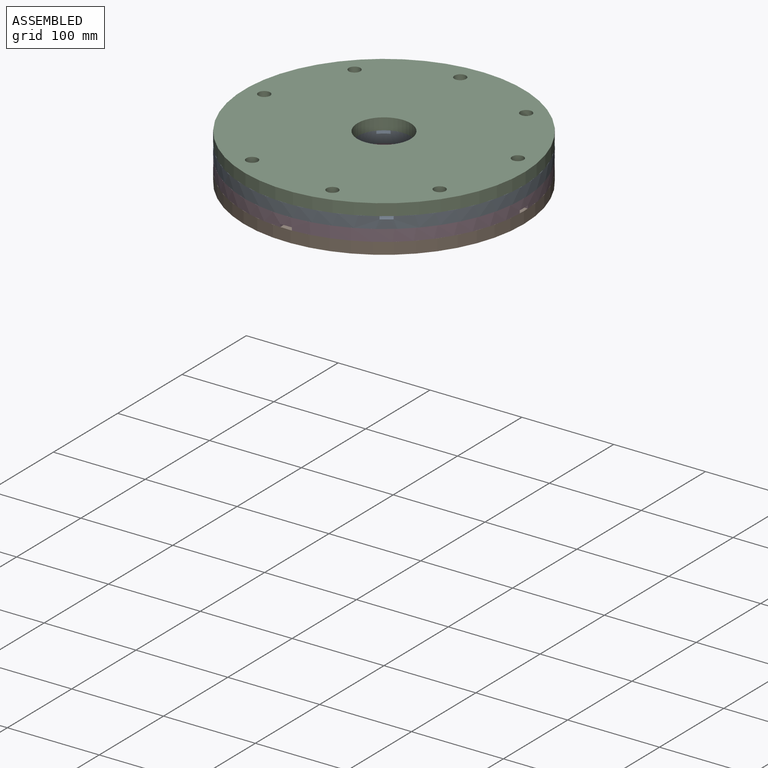
[diagram: assembled view]
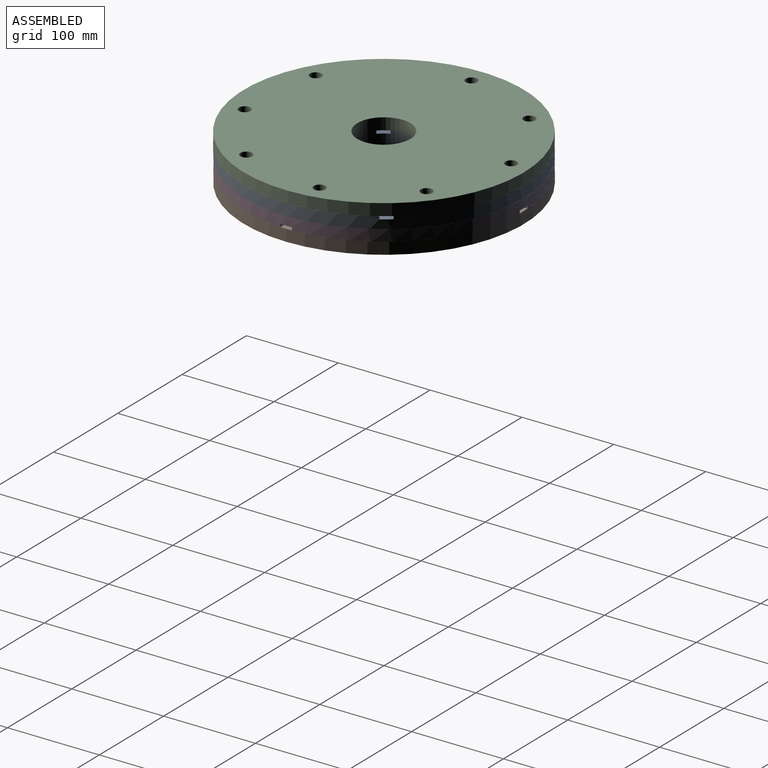
[diagram: assembled view, second angle]
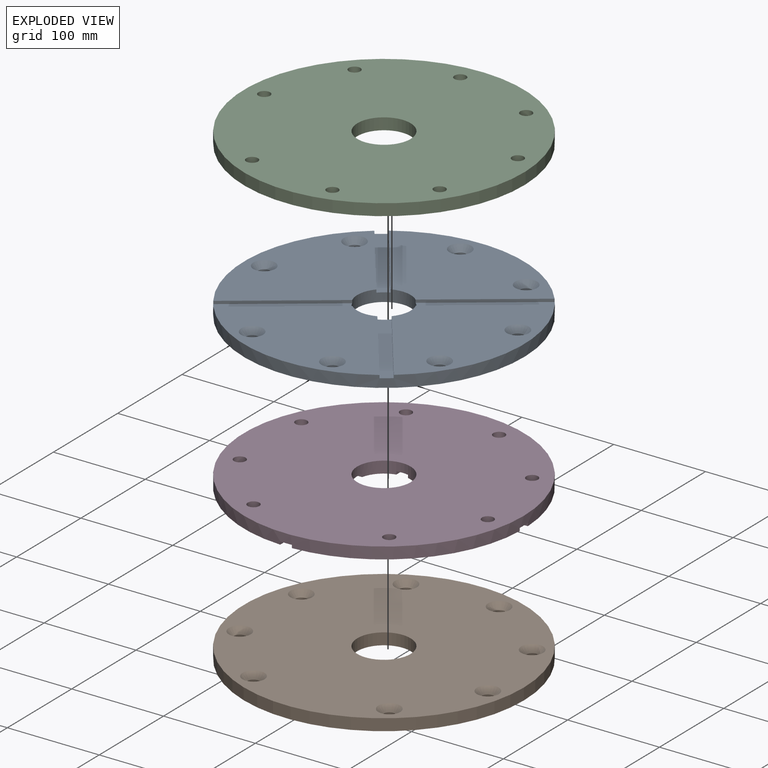
[diagram: exploded view]
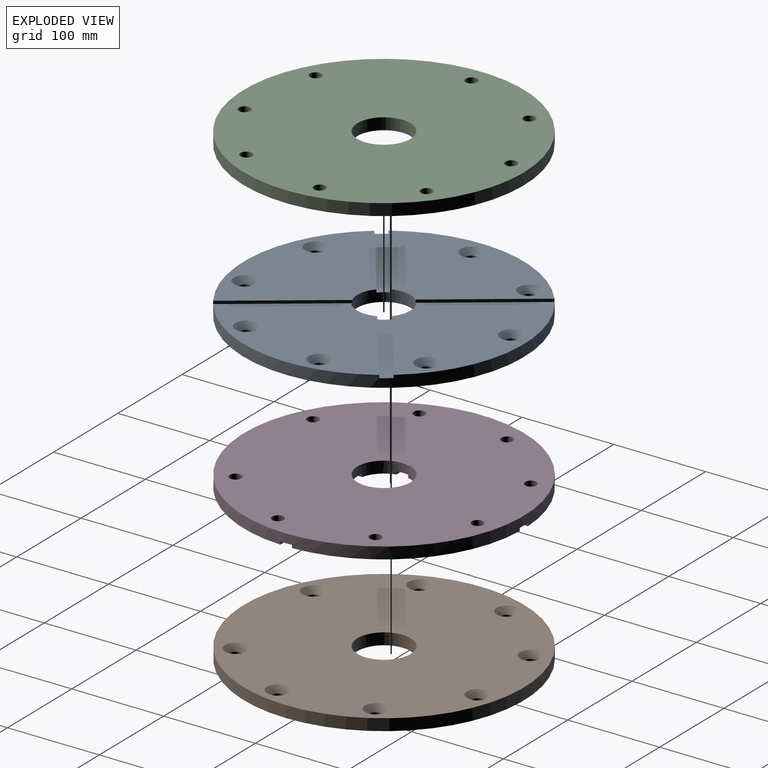
[diagram: exploded view, second angle]
ASSEMBLY  parts=4 mates=3
PART A: 35 faces, bbox 304.8x304.8x12.7 mm
  f0: plane 124.1x12.7mm, normal (0,0,1), area 1569.6mm2, adj f3,f13,f14,f18
  f1: plane 124.1x12.7mm, normal (0,0,1), area 1569.6mm2, adj f3,f15,f16,f18
  f2: plane 124.1x12.7mm, normal (0,0,1), area 1569.6mm2, adj f3,f9,f10,f18
  f3: cylinder r=152.4mm len=304.8mm, axis (0,0,1), area 11999.6mm2, adj f0,f1,f2,f4,f5,f6,f7,f8
  f4: plane 145.92x145.92mm, normal (0,0,1), area 15119.7mm2, adj f3,f12,f13,f18,f30,f32
  f5: plane 145.92x145.92mm, normal (0,0,1), area 15119.7mm2, adj f3,f14,f15,f18,f26,f28
  f6: plane 145.92x145.92mm, normal (0,0,1), area 15119.7mm2, adj f3,f9,f16,f18,f24,f34
  f7: plane 304.8x304.8mm, normal (0,0,-1), area 69310.4mm2, adj f3,f18,f19,f21,f23,f25,f27,f29
  f8: plane 145.92x145.92mm, normal (0,0,1), area 15119.7mm2, adj f3,f10,f11,f18,f20,f22
  f9: plane 123.97x3.18mm, normal (1,0,0), area 393.6mm2, adj f2,f3,f6,f18
  f10: plane 123.97x3.18mm, normal (-1,0,0), area 393.6mm2, adj f2,f3,f8,f18
  f11: plane 123.97x3.18mm, normal (0,1,0), area 393.6mm2, adj f3,f8,f17,f18
  f12: plane 123.97x3.18mm, normal (0,-1,0), area 393.6mm2, adj f3,f4,f17,f18
  f13: plane 123.97x3.18mm, normal (-1,0,0), area 393.6mm2, adj f0,f3,f4,f18
  f14: plane 123.97x3.18mm, normal (1,0,0), area 393.6mm2, adj f0,f3,f5,f18
  f15: plane 123.97x3.18mm, normal (0,-1,0), area 393.6mm2, adj f1,f3,f5,f18
  f16: plane 123.97x3.18mm, normal (0,1,0), area 393.6mm2, adj f1,f3,f6,f18
  f17: plane 124.1x12.7mm, normal (0,0,1), area 1569.6mm2, adj f3,f11,f12,f18
  f18: cylinder r=29mm len=58mm, axis (0,0,-1), area 2151.5mm2, adj f0,f1,f2,f4,f5,f6,f7,f8
  f19: cylinder r=6.35mm len=12.7mm, axis (0,0,1), area 251.4mm2, adj f7,f20
  f20: cone r=6.35mm half-angle=41deg, axis (0,0,1), area 486.5mm2, adj f8,f19
  f21: cylinder r=6.35mm len=12.7mm, axis (0,0,1), area 251.4mm2, adj f7,f22
  f22: cone r=6.35mm half-angle=41deg, axis (0,0,1), area 486.5mm2, adj f8,f21
  f23: cylinder r=6.35mm len=12.7mm, axis (0,0,1), area 251.4mm2, adj f7,f24
  f24: cone r=6.35mm half-angle=41deg, axis (0,0,1), area 486.5mm2, adj f6,f23
  f25: cylinder r=6.35mm len=12.7mm, axis (0,0,1), area 251.4mm2, adj f7,f26
  f26: cone r=6.35mm half-angle=41deg, axis (0,0,1), area 486.5mm2, adj f5,f25
  f27: cylinder r=6.35mm len=12.7mm, axis (0,0,1), area 251.4mm2, adj f7,f28
  f28: cone r=6.35mm half-angle=41deg, axis (0,0,1), area 486.5mm2, adj f5,f27
  f29: cylinder r=6.35mm len=12.7mm, axis (0,0,1), area 251.4mm2, adj f7,f30
  f30: cone r=6.35mm half-angle=41deg, axis (0,0,1), area 486.5mm2, adj f4,f29
  f31: cylinder r=6.35mm len=12.7mm, axis (0,0,1), area 251.4mm2, adj f7,f32
  f32: cone r=6.35mm half-angle=41deg, axis (0,0,1), area 486.5mm2, adj f4,f31
  f33: cylinder r=6.35mm len=12.7mm, axis (0,0,1), area 251.4mm2, adj f7,f34
  f34: cone r=6.35mm half-angle=41deg, axis (0,0,1), area 486.5mm2, adj f6,f33
PART B: 20 faces, bbox 304.8x304.8x12.7 mm
  f0: cylinder r=152.4mm len=304.8mm, axis (0,0,-1), area 12161mm2, adj f1,f2
  f1: plane 304.8x304.8mm, normal (0,0,1), area 69310.4mm2, adj f0,f3,f5,f7,f9,f11,f13,f15
  f2: plane 304.8x304.8mm, normal (0,0,-1), area 66757.2mm2, adj f0,f4,f6,f8,f10,f12,f14,f16
  f3: cylinder r=6.35mm len=12.7mm, axis (0,0,-1), area 251.4mm2, adj f1,f4
  f4: cone r=6.35mm half-angle=41deg, axis (0,0,-1), area 486.5mm2, adj f2,f3
  f5: cylinder r=6.35mm len=12.7mm, axis (0,0,-1), area 251.4mm2, adj f1,f6
  f6: cone r=6.35mm half-angle=41deg, axis (0,0,-1), area 486.5mm2, adj f2,f5
  f7: cylinder r=6.35mm len=12.7mm, axis (0,0,-1), area 251.4mm2, adj f1,f8
  f8: cone r=6.35mm half-angle=41deg, axis (0,0,-1), area 486.5mm2, adj f2,f7
  f9: cylinder r=6.35mm len=12.7mm, axis (0,0,-1), area 251.4mm2, adj f1,f10
  f10: cone r=6.35mm half-angle=41deg, axis (0,0,-1), area 486.5mm2, adj f2,f9
  f11: cylinder r=6.35mm len=12.7mm, axis (0,0,-1), area 251.4mm2, adj f1,f12
  f12: cone r=6.35mm half-angle=41deg, axis (0,0,-1), area 486.5mm2, adj f2,f11
  f13: cylinder r=6.35mm len=12.7mm, axis (0,0,-1), area 251.4mm2, adj f1,f14
  f14: cone r=6.35mm half-angle=41deg, axis (0,0,-1), area 486.5mm2, adj f2,f13
  f15: cylinder r=6.35mm len=12.7mm, axis (0,0,-1), area 251.4mm2, adj f1,f16
  f16: cone r=6.35mm half-angle=41deg, axis (0,0,-1), area 486.5mm2, adj f2,f15
  f17: cylinder r=6.35mm len=12.7mm, axis (0,0,-1), area 251.4mm2, adj f1,f18
  f18: cone r=6.35mm half-angle=41deg, axis (0,0,-1), area 486.5mm2, adj f2,f17
  f19: cylinder r=29mm len=58mm, axis (0,0,-1), area 2314.1mm2, adj f1,f2
PART C: same geometry as B
PART D: same geometry as A
PLACE A rot(axis=(0,0,1),125.9deg) t=(0.12,-0.06,38.1)mm
PLACE B rot(axis=(1,0,0),180deg) t=(0,0,12.7)mm
PLACE C rot(axis=(0,0,1),125.9deg) t=(0.12,-0.06,38.1)mm
PLACE D rot(axis=(1,0,0),180deg) t=(0,0,12.7)mm
MATE revolute A.f7 <-> D.f7  axis (0,0,-1) through (0.01,-0.12,25.4)mm
MATE fastened B.f0 <-> D.f3  axis (0,0,1) through (0,0,12.7)mm
MATE fastened A.f3 <-> C.f0  axis (0,0,1) through (0.12,-0.06,38.1)mm
